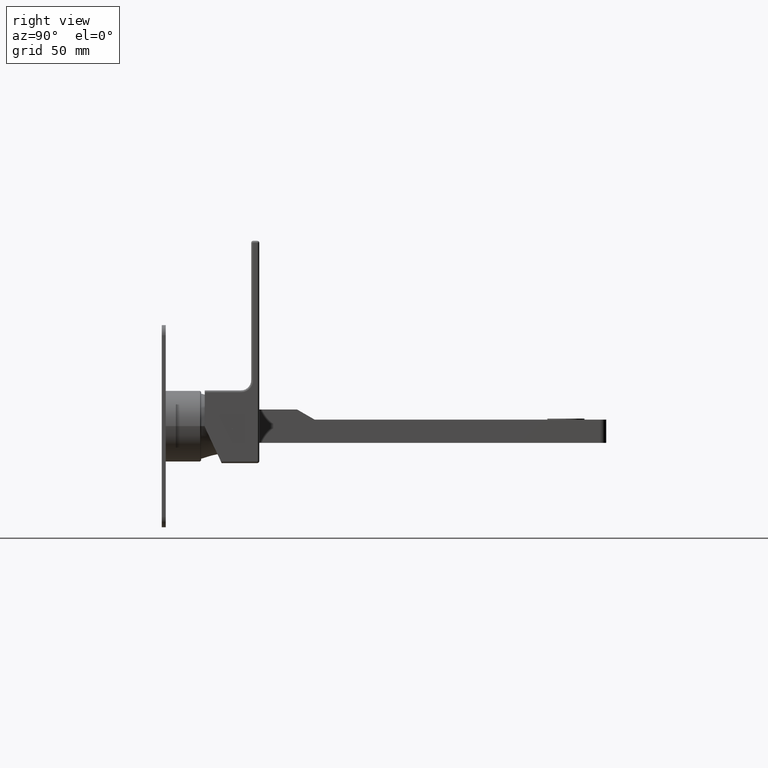
[diagram: clean part render]
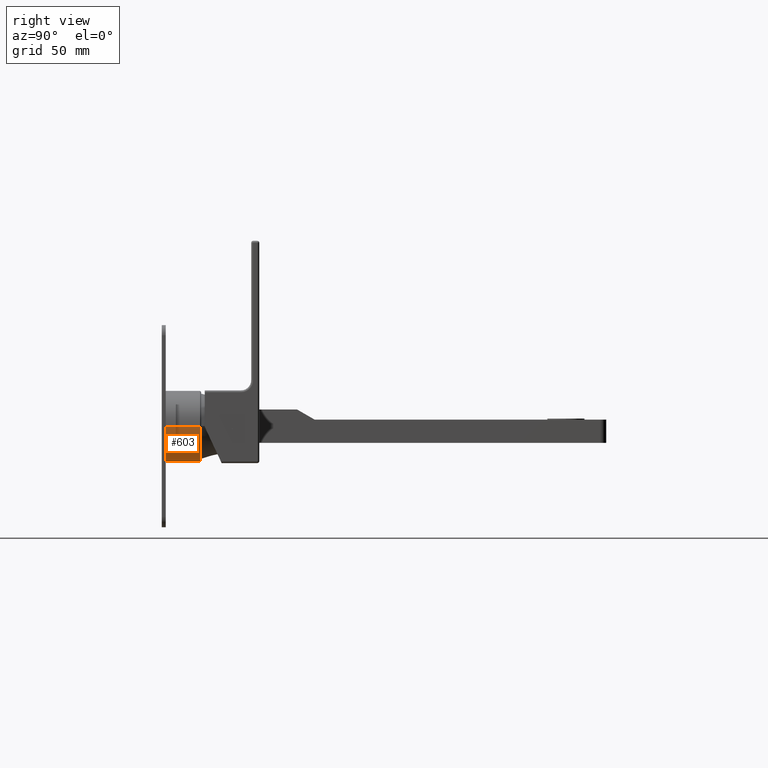
[diagram: same view with one face highlighted and labeled with its STEP entity id]
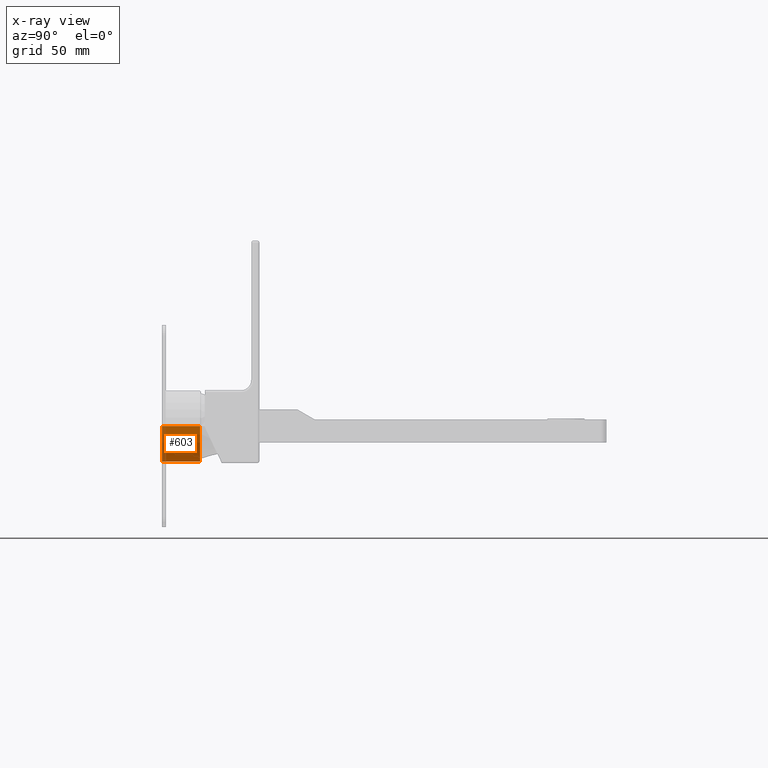
[diagram: x-ray of the same camera — body ghosted, the highlighted face saturated]
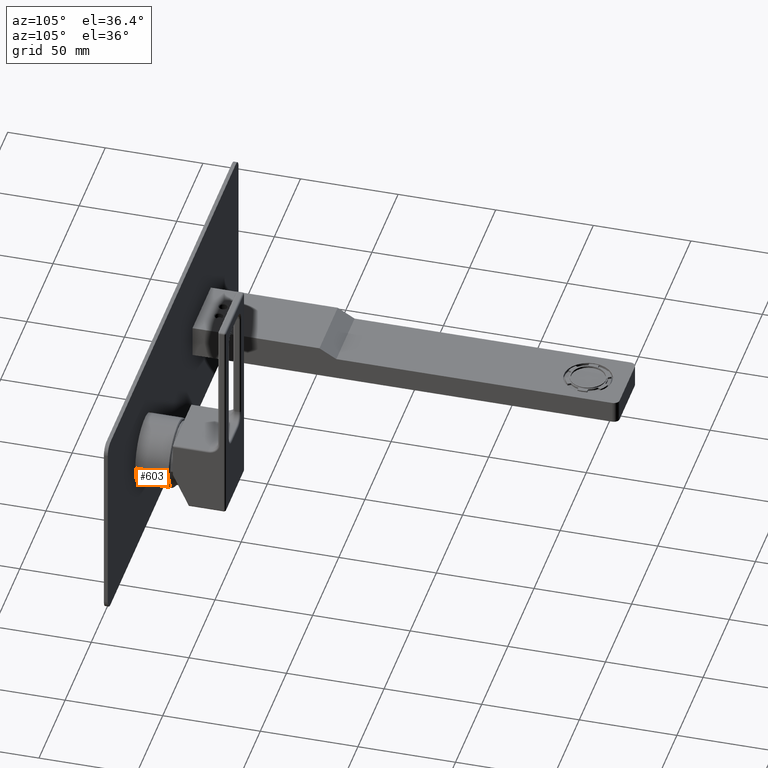
[diagram: same view with one face highlighted and labeled with its STEP entity id]
A machine part, right view. The second image highlights one B-rep face of the part: STEP entity #603.
The next image is the same camera in x-ray: the body ghosted, the highlighted face saturated — about 11% of this face is hidden behind the body in this view.
A second angle (auxiliary view) of the same face is appended — the face is thin or edge-on in the first view.
In plain terms, the highlighted cylindrical surface (edge-blend (fillet) strip) has radius 17.6 mm, axis along (0, -1, 0).
Its self-contained STEP definition (entity closure, byte-faithful):
#59=CARTESIAN_POINT('',(1.09E2,5.1E1,1.224646799147E-14));
#60=DIRECTION('',(0.E0,-1.E0,0.E0));
#61=DIRECTION('',(-1.E0,0.E0,0.E0));
#62=AXIS2_PLACEMENT_3D('',#59,#60,#61);
#64=DIRECTION('',(-9.434511651361E-12,1.E0,1.928178916923E-10));
#65=VECTOR('',#64,1.900000000018E1);
#66=CARTESIAN_POINT('',(1.266E2,5.1E1,1.440184635797E-14));
#67=LINE('',#66,#65);
#68=CARTESIAN_POINT('',(1.09E2,7.E1,1.224646799147E-14));
#69=DIRECTION('',(0.E0,1.E0,0.E0));
#70=DIRECTION('',(1.E0,0.E0,0.E0));
#71=AXIS2_PLACEMENT_3D('',#68,#69,#70);
#73=DIRECTION('',(9.435259591083E-12,1.E0,-1.928174149260E-10));
#74=VECTOR('',#73,1.900000000018E1);
#75=CARTESIAN_POINT('',(9.14E1,5.1E1,1.026364923759E-14));
#76=LINE('',#75,#74);
#423=CARTESIAN_POINT('',(9.14E1,7.E1,1.790705971834E-14));
#424=CARTESIAN_POINT('',(1.266E2,7.E1,1.655722472447E-14));
#425=VERTEX_POINT('',#423);
#426=VERTEX_POINT('',#424);
#427=CARTESIAN_POINT('',(1.266E2,5.1E1,1.440184635797E-14));
#428=CARTESIAN_POINT('',(9.14E1,5.1E1,1.224646799147E-14));
#429=VERTEX_POINT('',#427);
#430=VERTEX_POINT('',#428);
#592=CARTESIAN_POINT('',(1.09E2,7.3175E1,1.224646799147E-14));
#593=DIRECTION('',(0.E0,-1.E0,0.E0));
#594=DIRECTION('',(-1.E0,0.E0,0.E0));
#595=AXIS2_PLACEMENT_3D('',#592,#593,#594);
#596=CYLINDRICAL_SURFACE('',#595,1.76E1);
#597=ORIENTED_EDGE('',*,*,#574,.T.);
#598=ORIENTED_EDGE('',*,*,#556,.T.);
#599=ORIENTED_EDGE('',*,*,#488,.T.);
#600=ORIENTED_EDGE('',*,*,#553,.F.);
#601=EDGE_LOOP('',(#597,#598,#599,#600));
#602=FACE_OUTER_BOUND('',#601,.F.);
#603=ADVANCED_FACE('',(#602),#596,.T.);
#63=CIRCLE('',#62,1.76E1);
#72=CIRCLE('',#71,1.76E1);
#488=EDGE_CURVE('',#426,#425,#72,.T.);
#553=EDGE_CURVE('',#430,#425,#76,.T.);
#556=EDGE_CURVE('',#429,#426,#67,.T.);
#574=EDGE_CURVE('',#430,#429,#63,.T.);